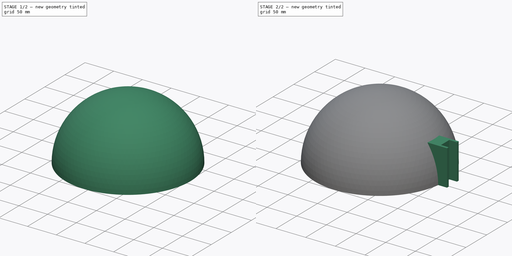
[diagram: build sequence overview — one tinted view per stage of 2, left to right]
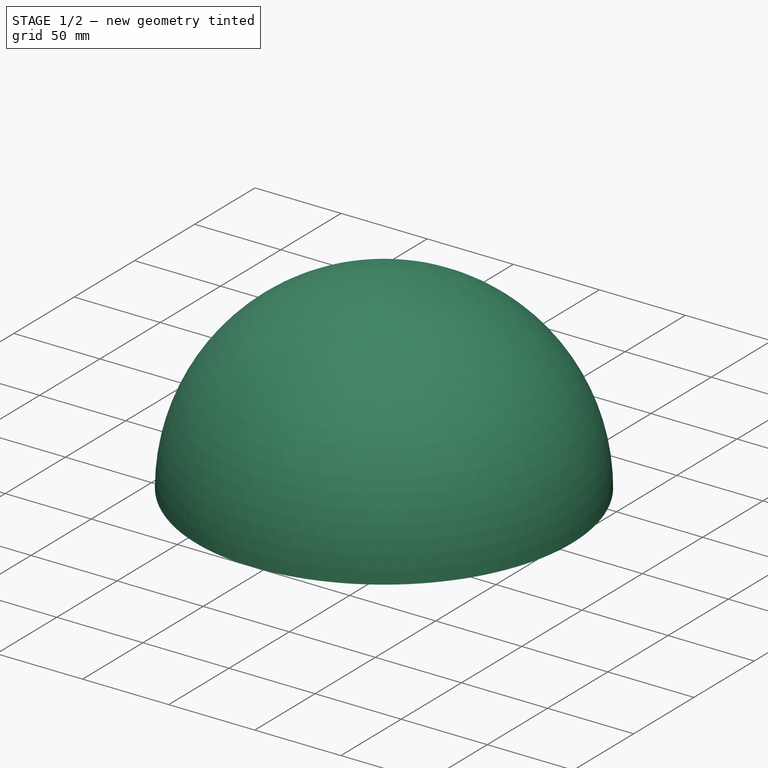
[diagram: stage 1 of 2 — iso view after this stage's code; geometry added in this stage tinted green]
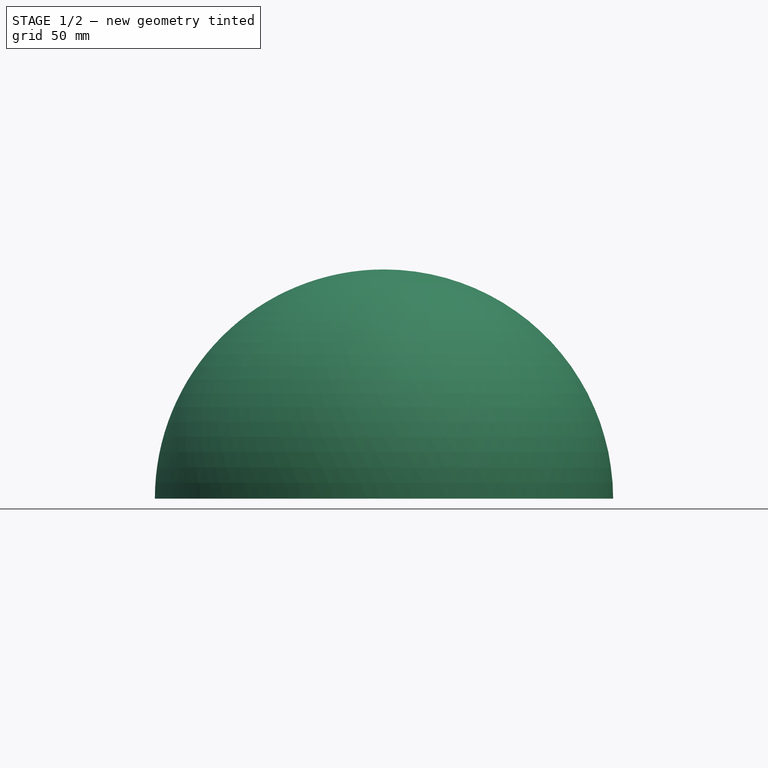
[diagram: stage 1 of 2 — front view after this stage's code; geometry added in this stage tinted green]
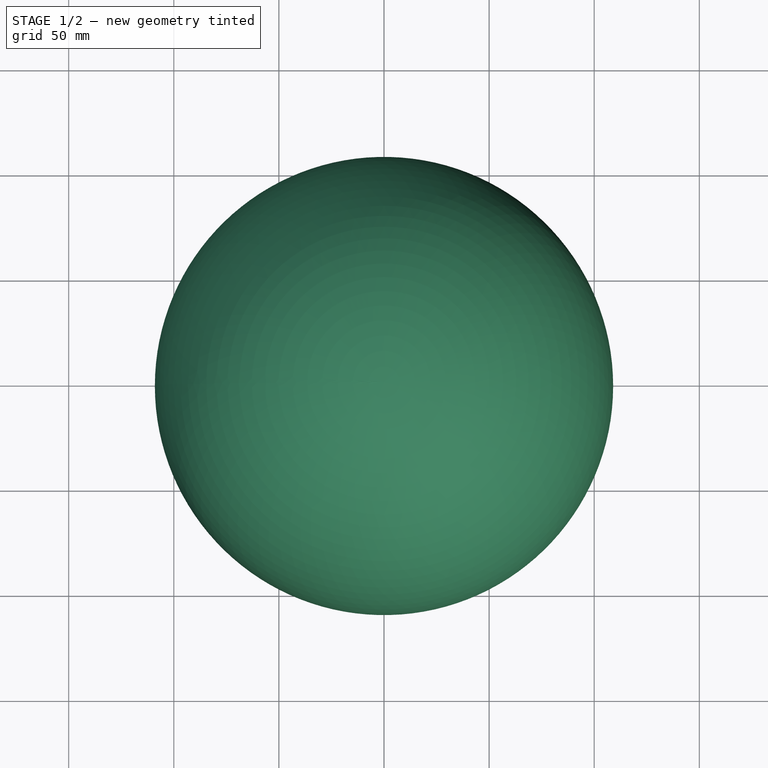
[diagram: stage 1 of 2 — top view after this stage's code; geometry added in this stage tinted green]
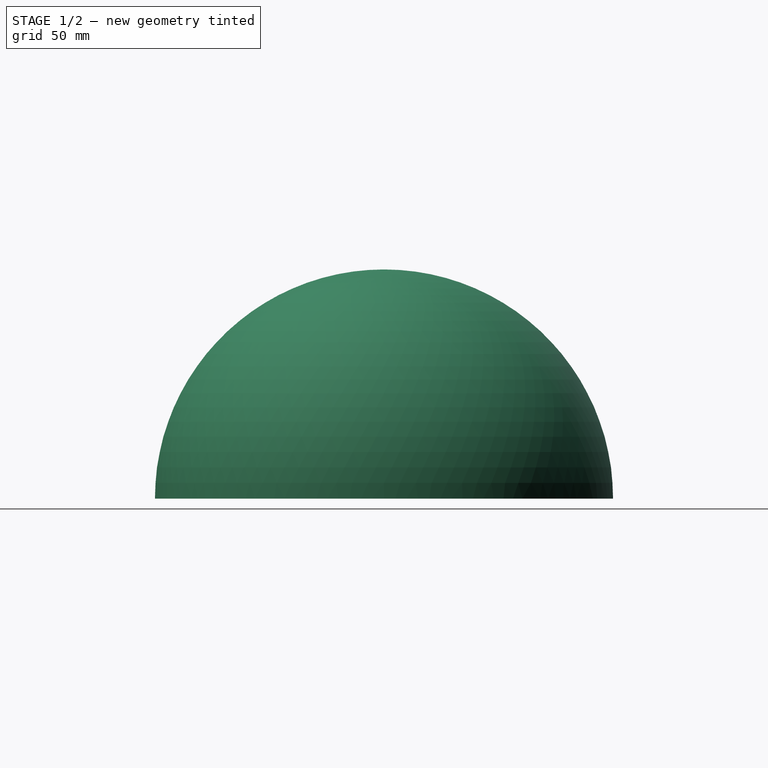
[diagram: stage 1 of 2 — right view after this stage's code; geometry added in this stage tinted green]
FCSTD DOCUMENT  (FreeCAD 0.18R16110 (Git))
Label: demibulle_v1
License: All rights reserved
LicenseURL: http://en.wikipedia.org/wiki/All_rights_reserved
objects: Sketcher::SketchObject×3, PartDesign::Revolution×2, PartDesign::Pad×1, PartDesign::Body×1
note: 10 computed .brp shape members not serialized (recipe doc carries the construction recipe); baked Part::Feature solids carry a one-line shape summary decoded from their .brp

FEATURE [Sketcher::SketchObject] Sketch
  MapMode = 5
  Placement = pos=(0,0,0) rot=(1,0,0;1.5708rad)
  Support = -> [XZ_Plane]
  sketch-geometry (4):
    g0: ArcOfCircle CenterX=0 CenterY=0 CenterZ=0 NormalX=0 NormalY=0 NormalZ=1 AngleXU=0 Radius=109 StartAngle=1.5708 EndAngle=3.14159
    g1: LineSegment StartX=-109 StartY=1.33e-14 StartZ=0 EndX=-106.2 EndY=1.3e-14 EndZ=0
    g2: ArcOfCircle CenterX=0 CenterY=0 CenterZ=0 NormalX=0 NormalY=0 NormalZ=1 AngleXU=0 Radius=106.2 StartAngle=1.5708 EndAngle=3.14159
    g3: LineSegment StartX=6.7e-15 StartY=109 StartZ=0 EndX=0 EndY=106.2 EndZ=0
  constraints (12):
    c: Coincident(g0,g-1)
    c: PointOnObject(g0,g-1)
    c: PointOnObject(g0,g-2)
    c: Radius(g0) = 109
    c: Coincident(g1,g0)
    c: PointOnObject(g1,g-1)
    c: DistanceX(g1) = -106.2
    c: Coincident(g2,g0)
    c: Coincident(g2,g1)
    c: PointOnObject(g2,g-2)
    c: Coincident(g3,g0)
    c: Coincident(g3,g2)
FEATURE [PartDesign::Revolution] Revolution
  Angle = 360
  Axis = (0,2e-16,1)
  Base = (0,0,0)
  Placement = pos=(0,0,0) rot=(1,0,0;1.5708rad)
  Profile = -> Sketch
  ReferenceAxis = -> Sketch [V_Axis]
FEATURE [Sketcher::SketchObject] Sketch001
  MapMode = 5
  Placement = pos=(0,0,1.33e-14) rot=(1,0,0;3.14159rad)
  Support = -> [Revolution]
  sketch-geometry (4):
    g0: LineSegment StartX=0 StartY=-10 StartZ=0 EndX=0 EndY=10 EndZ=0
    g1: LineSegment StartX=0 StartY=-10 StartZ=0 EndX=-106.3 EndY=-10 EndZ=0
    g2: LineSegment StartX=0 StartY=10 StartZ=0 EndX=-106.3 EndY=10 EndZ=0
    g3: ArcOfCircle CenterX=0 CenterY=0 CenterZ=0 NormalX=0 NormalY=0 NormalZ=1 AngleXU=0 Radius=106.769 StartAngle=3.0478 EndAngle=3.23539
  constraints (12):
    c: PointOnObject(g0,g-2)
    c: PointOnObject(g0,g-2)
    c: DistanceY(g0) = 10
    c: DistanceY(g0) = -10
    c: Coincident(g1,g0)
    c: Horizontal(g1)
    c: DistanceX(g1) = -106.3
    c: Coincident(g2,g0)
    c: Horizontal(g2)
    c: Coincident(g3,g-1)
    c: Coincident(g3,g2)
    c: Coincident(g3,g1)
FEATURE [PartDesign::Revolution] Revolution001
  Angle = 180
  Axis = (0,-1,7e-16)
  Base = (0,0,1.33e-14)
  BaseFeature = -> Revolution
  Placement = pos=(0,0,0) rot=(1,0,0;1.5708rad)
  Profile = -> Sketch001
  ReferenceAxis = -> Sketch001 [V_Axis]
  Reversed = true
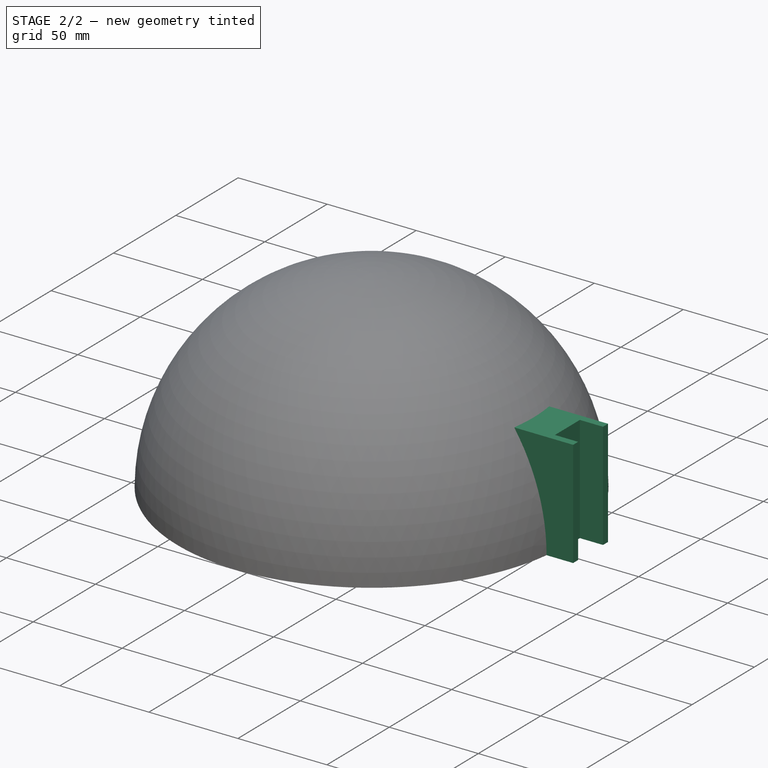
[diagram: stage 2 of 2 — iso view after this stage's code; geometry added in this stage tinted green]
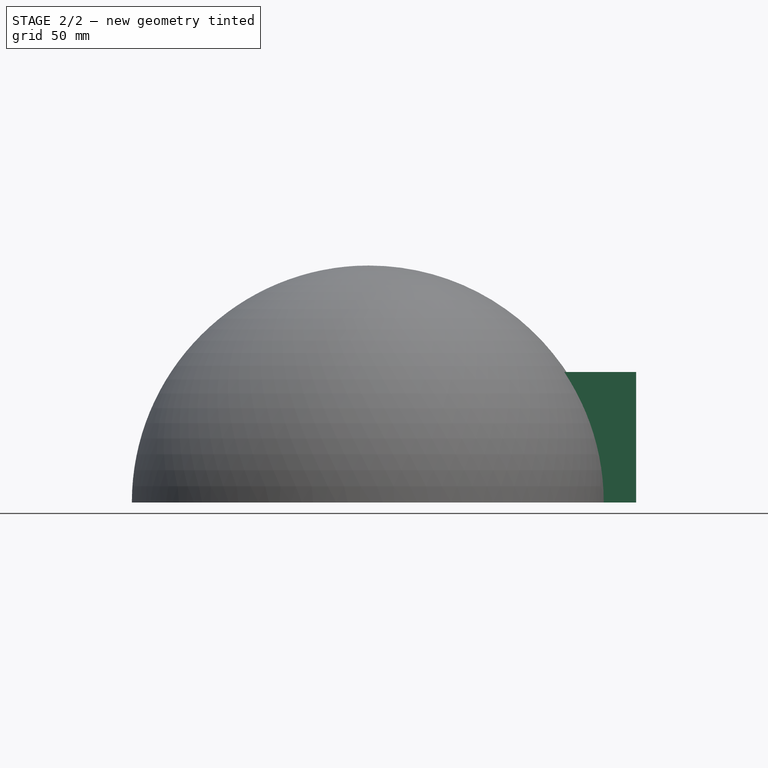
[diagram: stage 2 of 2 — front view after this stage's code; geometry added in this stage tinted green]
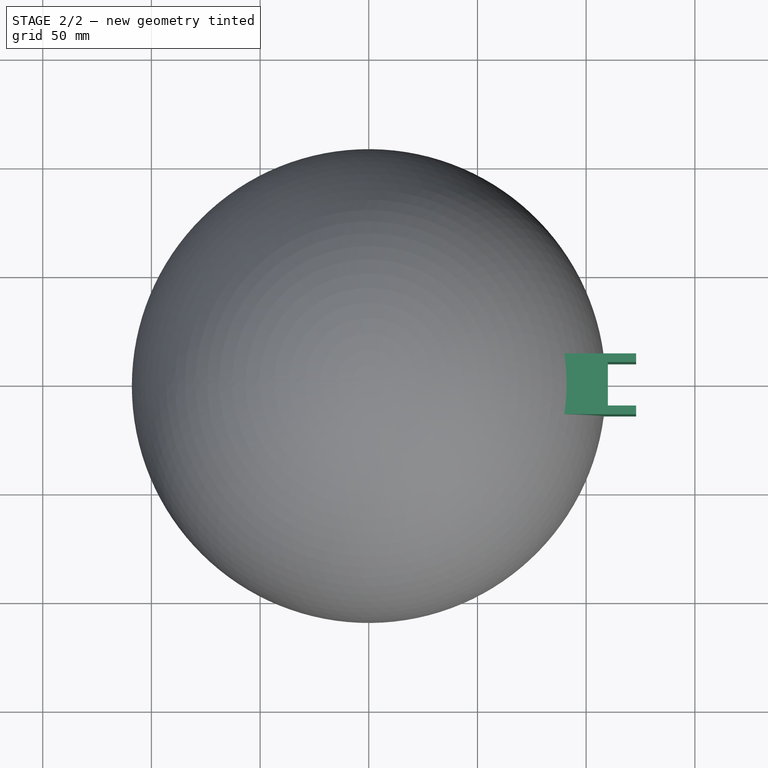
[diagram: stage 2 of 2 — top view after this stage's code; geometry added in this stage tinted green]
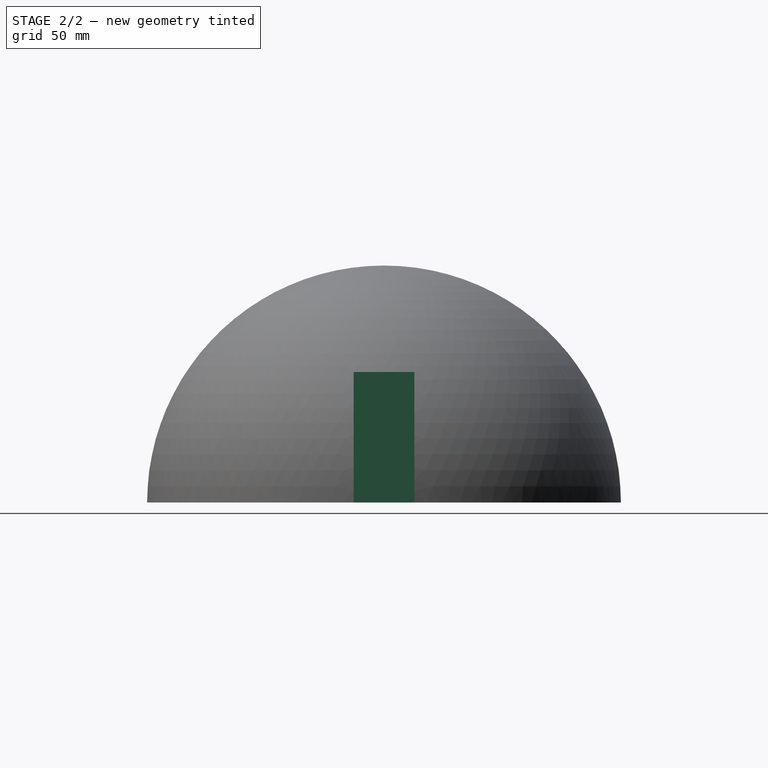
[diagram: stage 2 of 2 — right view after this stage's code; geometry added in this stage tinted green]
FEATURE [Sketcher::SketchObject] Sketch002
  MapMode = 5
  Placement = pos=(0,0,1.33e-14) rot=(1,0,0;3.14159rad)
  Support = -> [Revolution001]
  sketch-geometry (8):
    g0: LineSegment StartX=90 StartY=14 StartZ=0 EndX=90 EndY=-14 EndZ=0
    g1: LineSegment StartX=90 StartY=14 StartZ=0 EndX=123 EndY=14 EndZ=0
    g2: LineSegment StartX=90 StartY=-14 StartZ=0 EndX=123 EndY=-14 EndZ=0
    g3: LineSegment StartX=123 StartY=-14 StartZ=0 EndX=123 EndY=-10 EndZ=0
    g4: LineSegment StartX=123 StartY=-10 StartZ=0 EndX=110 EndY=-10 EndZ=0
    g5: LineSegment StartX=110 StartY=-10 StartZ=0 EndX=110 EndY=10 EndZ=0
    g6: LineSegment StartX=110 StartY=10 StartZ=0 EndX=123 EndY=10 EndZ=0
    g7: LineSegment StartX=123 StartY=14 StartZ=0 EndX=123 EndY=10 EndZ=0
  constraints (23):
    c: Symmetric(g0,g0,g-1)
    c: DistanceX(g0) = 90
    c: Distance(g0) = 28
    c: Coincident(g1,g0)
    c: Horizontal(g1)
    c: DistanceX(g1) = 123
    c: Coincident(g2,g0)
    c: Horizontal(g2)
    c: DistanceX(g2) = 123
    c: Coincident(g3,g2)
    c: Vertical(g3)
    c: DistanceY(g3) = -10
    c: Coincident(g4,g3)
    c: Horizontal(g4)
    c: DistanceX(g4) = 110
    c: Coincident(g5,g4)
    c: Vertical(g5)
    c: DistanceY(g5) = 10
    c: Coincident(g6,g5)
    c: Horizontal(g6)
    c: DistanceX(g6) = 123
    c: Coincident(g7,g1)
    c: Coincident(g7,g6)
FEATURE [PartDesign::Pad] Pad
  BaseFeature = -> Revolution001
  Length = 60
  Length2 = 100
  Placement = pos=(0,0,0) rot=(1,0,0;1.5708rad)
  Profile = -> Sketch002
  Reversed = true
  Type = 0
FEATURE [PartDesign::Body] Body
  Group = -> [Sketch,Revolution,Sketch001,Revolution001,Sketch002,Pad]
  Origin = -> Origin
  Tip = -> Pad
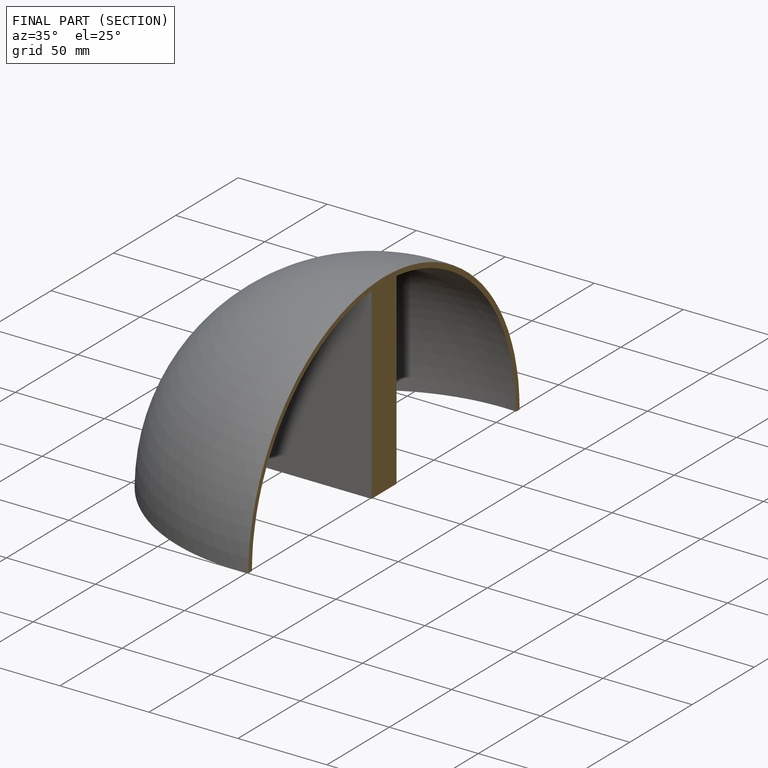
[diagram: finished part — half-section view (interior)]
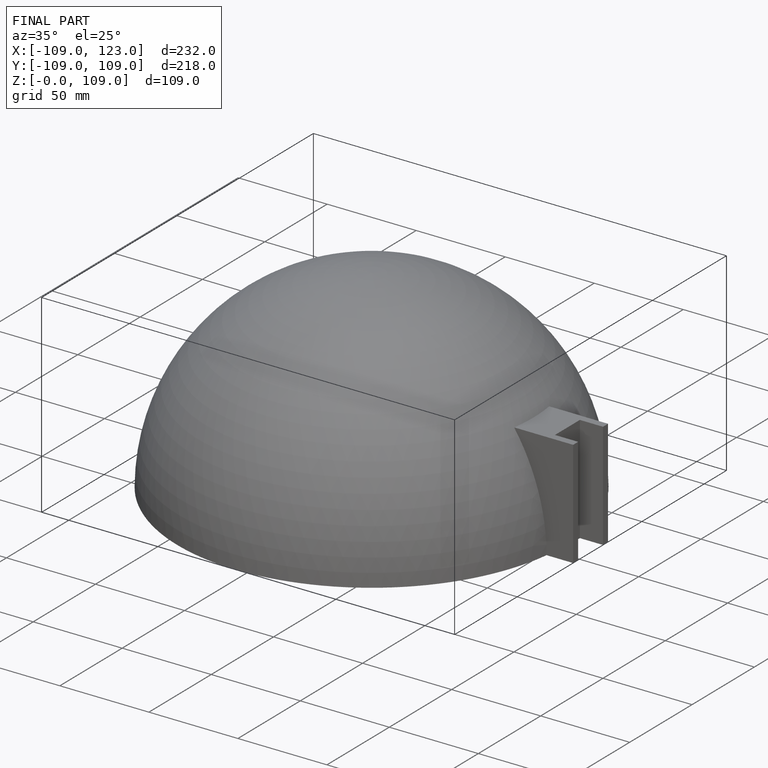
[diagram: finished part — iso view with bounding-box wireframe]
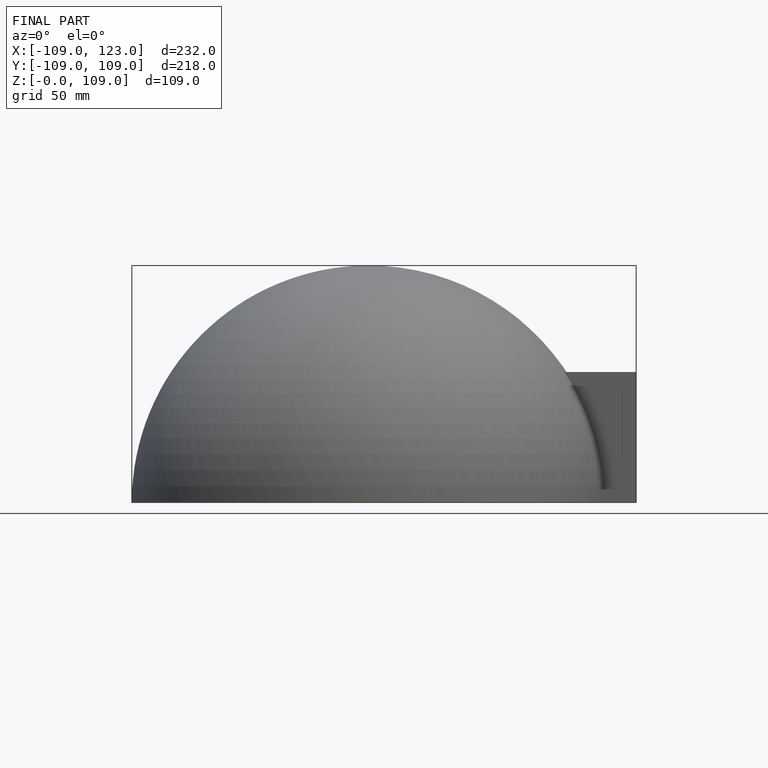
[diagram: finished part — front view with bounding-box wireframe]
